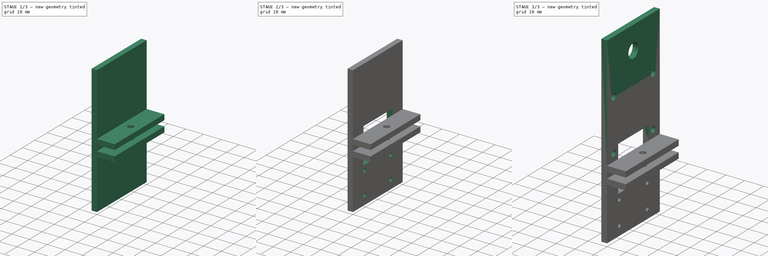
[diagram: build sequence overview — one tinted view per stage of 3, left to right]
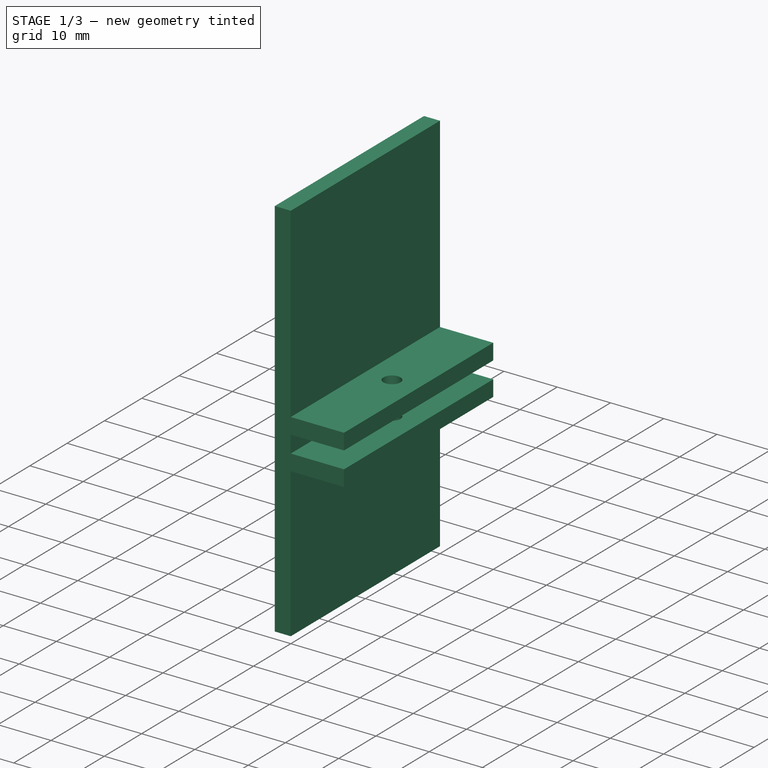
[diagram: stage 1 of 3 — iso view after this stage's code; geometry added in this stage tinted green]
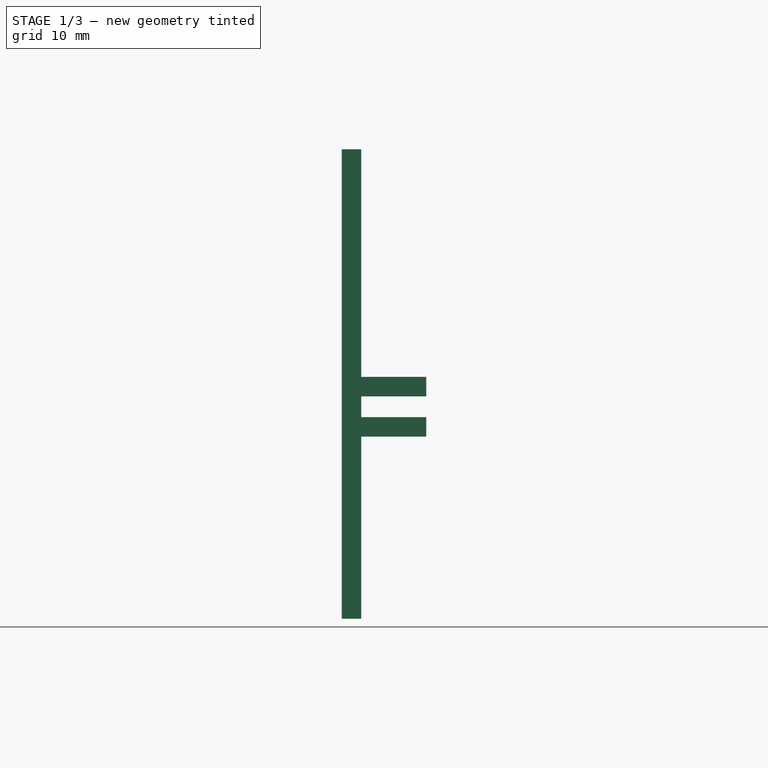
[diagram: stage 1 of 3 — front view after this stage's code; geometry added in this stage tinted green]
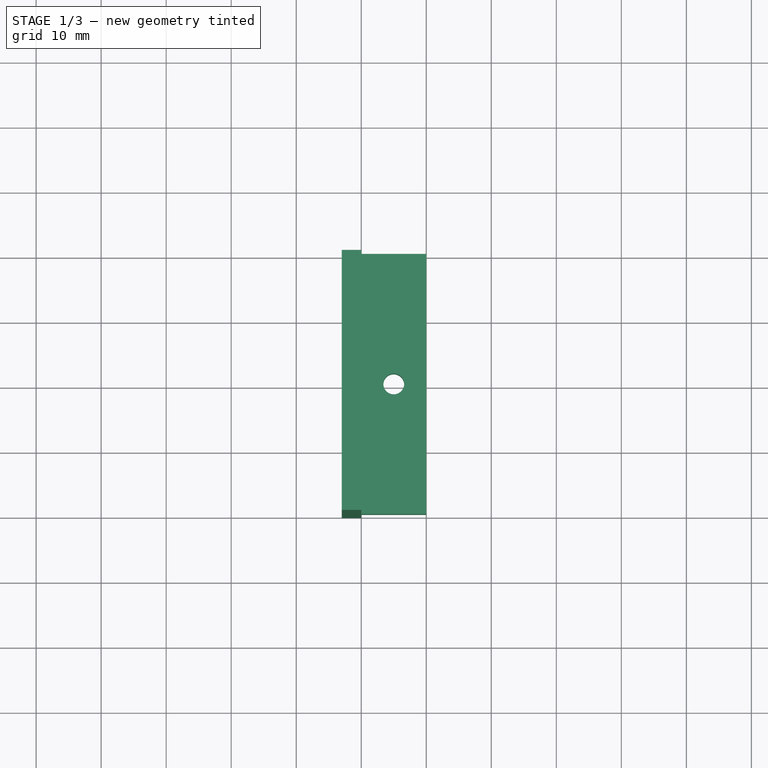
[diagram: stage 1 of 3 — top view after this stage's code; geometry added in this stage tinted green]
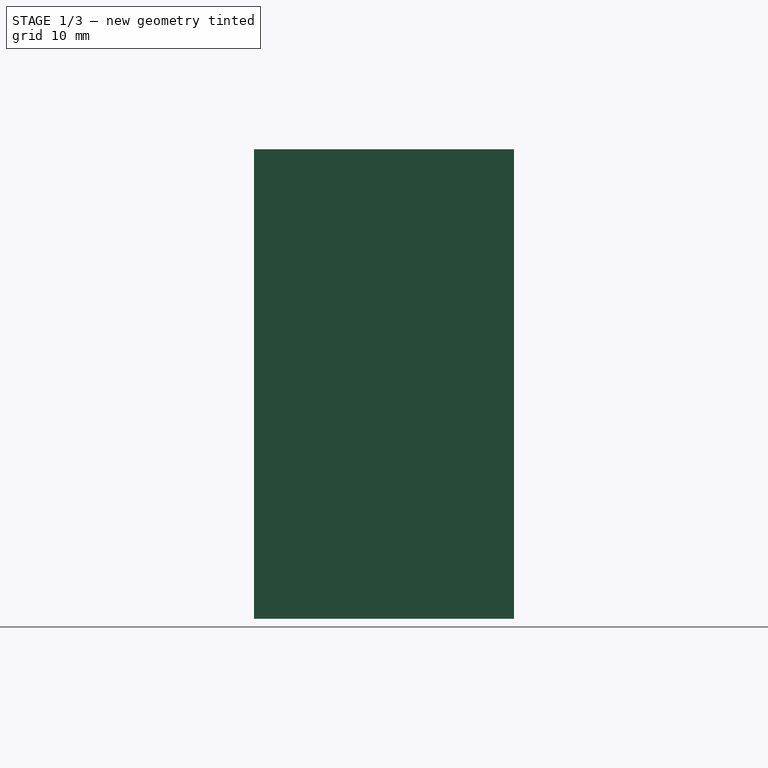
[diagram: stage 1 of 3 — right view after this stage's code; geometry added in this stage tinted green]
FCSTD DOCUMENT  (FreeCAD 0.18.1R)
Label: front_panel
License: All rights reserved
LicenseURL: http://en.wikipedia.org/wiki/All_rights_reserved
objects: Sketcher::SketchObject×5, PartDesign::Pocket×3, PartDesign::Pad×2, PartDesign::Body×1
note: 16 computed .brp shape members not serialized (recipe doc carries the construction recipe); baked Part::Feature solids carry a one-line shape summary decoded from their .brp

FEATURE [Sketcher::SketchObject] Sketch
  MapMode = 5
  Placement = pos=(0,0,0) rot=(1,0,0;1.5708rad)
  Support = -> [XZ_Plane]
  sketch-geometry (14):
    g0: LineSegment StartX=-3 StartY=39.6 StartZ=0 EndX=0 EndY=39.6 EndZ=0
    g1: LineSegment StartX=0 StartY=39.6 StartZ=0 EndX=0 EndY=4.6 EndZ=0
    g2: LineSegment StartX=0 StartY=4.6 StartZ=0 EndX=10 EndY=4.6 EndZ=0
    g3: LineSegment StartX=10 StartY=4.6 StartZ=0 EndX=10 EndY=1.6 EndZ=0
    g4: LineSegment StartX=10 StartY=1.6 StartZ=0 EndX=0 EndY=1.6 EndZ=0
    g5: LineSegment StartX=0 StartY=1.6 StartZ=0 EndX=0 EndY=0 EndZ=0
    g6: LineSegment StartX=0 StartY=0 StartZ=0 EndX=2e-16 EndY=-1.6 EndZ=0
    g7: LineSegment StartX=2e-16 StartY=-1.6 StartZ=0 EndX=10 EndY=-1.6 EndZ=0
    g8: LineSegment StartX=10 StartY=-1.6 StartZ=0 EndX=10 EndY=-4.6 EndZ=0
    g9: LineSegment StartX=10 StartY=-4.6 StartZ=0 EndX=0 EndY=-4.6 EndZ=0
    g10: LineSegment StartX=0 StartY=-4.6 StartZ=0 EndX=0 EndY=-32.6 EndZ=0
    g11: LineSegment StartX=0 StartY=-32.6 StartZ=0 EndX=-3 EndY=-32.6 EndZ=0
    g12: LineSegment StartX=-3 StartY=-32.6 StartZ=0 EndX=-3 EndY=39.6 EndZ=0
    g13: GeomPoint X=-3 Y=0 Z=0
  constraints (40):
    c: Horizontal(g0)
    c: Coincident(g0,g1)
    c: Vertical(g1)
    c: Coincident(g1,g2)
    c: Horizontal(g2)
    c: Coincident(g2,g3)
    c: Vertical(g3)
    c: Coincident(g3,g4)
    c: Horizontal(g4)
    c: Coincident(g4,g5)
    c: Coincident(g5,g-1)
    c: Coincident(g5,g6)
    c: Coincident(g6,g7)
    c: Horizontal(g7)
    c: Coincident(g7,g8)
    c: Vertical(g8)
    c: Coincident(g8,g9)
    c: PointOnObject(g9,g-2)
    c: Horizontal(g9)
    c: Coincident(g9,g10)
    c: Vertical(g10)
    c: Coincident(g10,g11)
    c: Coincident(g11,g12)
    c: Coincident(g12,g0)
    c: Vertical(g12)
    c: Vertical(g5)
    c: Equal(g6,g5)
    c: Horizontal(g11)
    c: Equal(g3,g8)
    c: DistanceY(g6,g4) = 3.2
    c: DistanceY(g3,g3) = 3
    c: Equal(g2,g4)
    c: Equal(g4,g7)
    c: Equal(g7,g9)
    c: DistanceX(g2,g2) = 10
    c: PointOnObject(g13,g12)
    c: PointOnObject(g13,g-1)
    c: DistanceX(g0,g0) = 3
    c: DistanceY(g10,g10) = 28
    c: DistanceY(g1,g1) = 35
FEATURE [PartDesign::Pad] Pad  label="Main shape"
  Length = 40
  Length2 = 100
  Midplane = true
  Placement = pos=(0,0,0) rot=(1,0,0;1.5708rad)
  Profile = -> Sketch
  Refine = true
  Type = 0
FEATURE [Sketcher::SketchObject] Sketch001
  MapMode = 5
  Placement = pos=(0,3.1e-15,4.6) rot=(0,0,1;3.14159rad)
  Support = -> [Pad]
  sketch-geometry (1):
    g0: Circle CenterX=-5 CenterY=0 CenterZ=0 NormalX=0 NormalY=0 NormalZ=1 AngleXU=0 Radius=1.6
  constraints (3):
    c: PointOnObject(g0,g-1)
    c: DistanceX(g0,g-1) = 5
    c: Diameter(g0) = 3.2
FEATURE [PartDesign::Pocket] Pocket  label="mount hole"
  BaseFeature = -> Pad
  Length = 5
  Length2 = 100
  Placement = pos=(0,0,0) rot=(1,0,0;1.5708rad)
  Profile = -> Sketch001
  Refine = true
  Type = 1
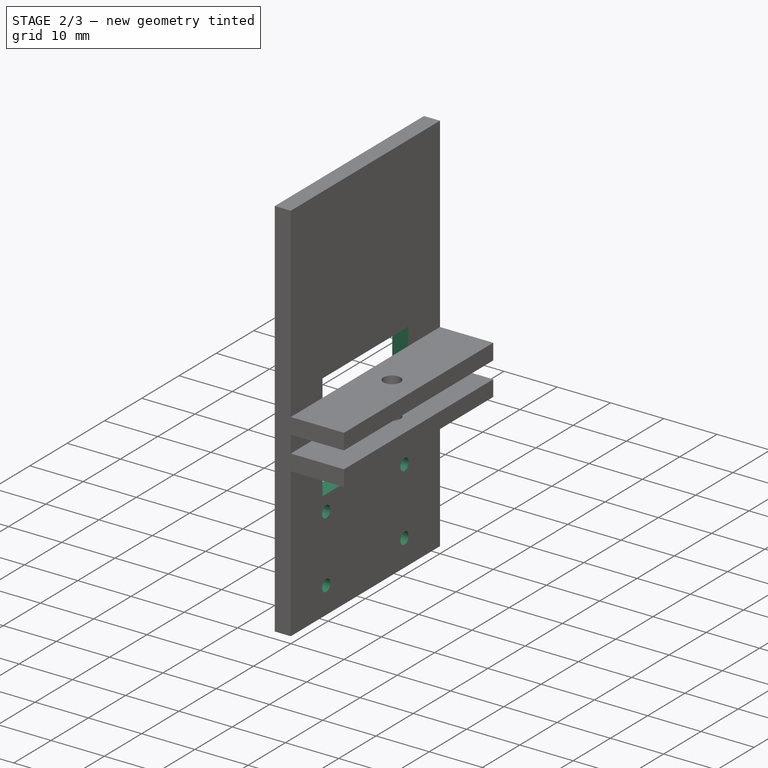
[diagram: stage 2 of 3 — iso view after this stage's code; geometry added in this stage tinted green]
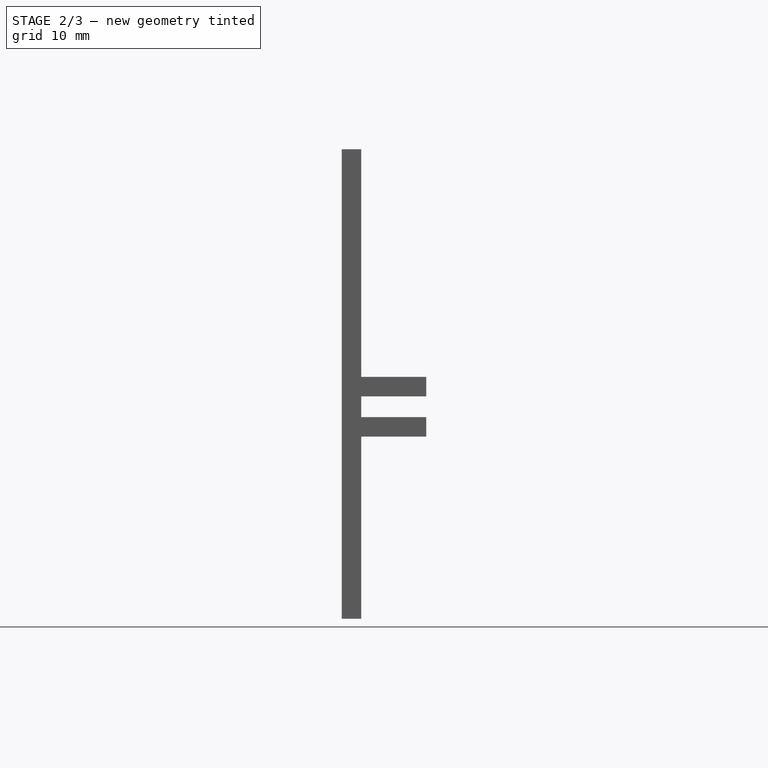
[diagram: stage 2 of 3 — front view after this stage's code; geometry added in this stage tinted green]
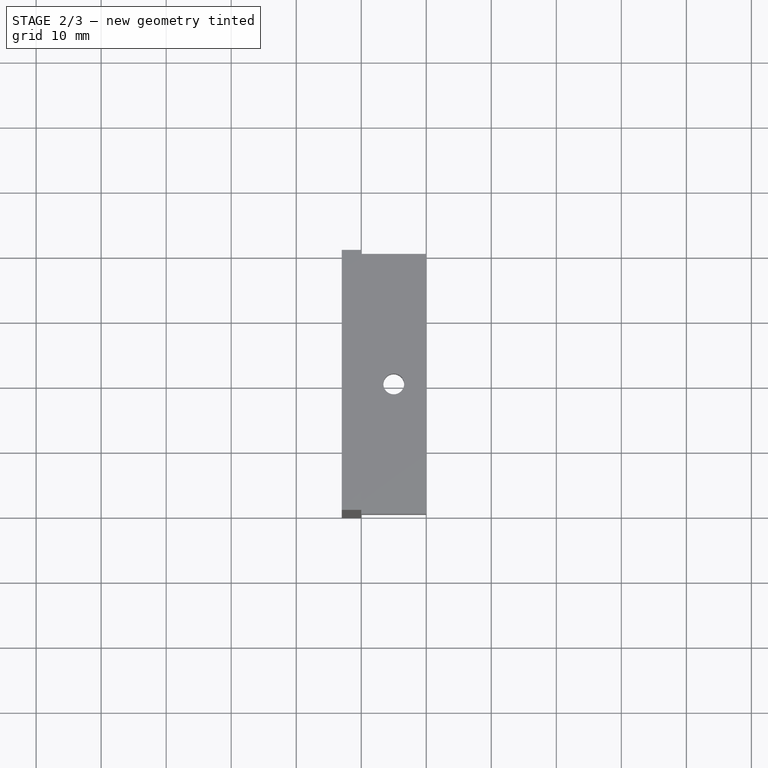
[diagram: stage 2 of 3 — top view after this stage's code; geometry added in this stage tinted green]
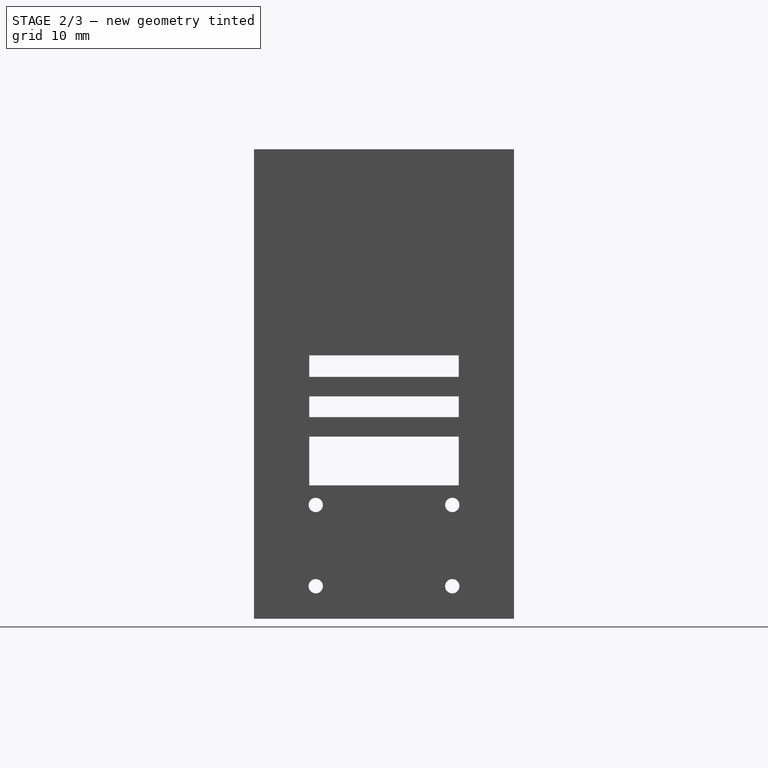
[diagram: stage 2 of 3 — right view after this stage's code; geometry added in this stage tinted green]
FEATURE [Sketcher::SketchObject] Sketch002
  ExternalGeometry = -> [Pocket]
  MapMode = 5
  Placement = pos=(0,0,0) rot=(0.707107,0,0.707107;3.14159rad)
  Support = -> [Pocket]
  sketch-geometry (12):
    g0: LineSegment [constr] StartX=-27.6 StartY=10.5 StartZ=0 EndX=-15.1 EndY=10.5 EndZ=0
    g1: LineSegment [constr] StartX=-15.1 StartY=10.5 StartZ=0 EndX=-15.1 EndY=-10.5 EndZ=0
    g2: LineSegment [constr] StartX=-15.1 StartY=-10.5 StartZ=0 EndX=-27.6 EndY=-10.5 EndZ=0
    g3: LineSegment [constr] StartX=-27.6 StartY=-10.5 StartZ=0 EndX=-27.6 EndY=10.5 EndZ=0
    g4: Circle CenterX=-27.6 CenterY=10.5 CenterZ=0 NormalX=0 NormalY=0 NormalZ=1 AngleXU=0 Radius=1.1
    g5: Circle CenterX=-15.1 CenterY=10.5 CenterZ=0 NormalX=0 NormalY=0 NormalZ=1 AngleXU=0 Radius=1.1
    g6: Circle CenterX=-27.6 CenterY=-10.5 CenterZ=0 NormalX=0 NormalY=0 NormalZ=1 AngleXU=0 Radius=1.1
    g7: Circle CenterX=-15.1 CenterY=-10.5 CenterZ=0 NormalX=0 NormalY=0 NormalZ=1 AngleXU=0 Radius=1.1
    g8: LineSegment StartX=-12.1 StartY=11.5 StartZ=0 EndX=7.9 EndY=11.5 EndZ=0
    g9: LineSegment StartX=7.9 StartY=11.5 StartZ=0 EndX=7.9 EndY=-11.5 EndZ=0
    g10: LineSegment StartX=7.9 StartY=-11.5 StartZ=0 EndX=-12.1 EndY=-11.5 EndZ=0
    g11: LineSegment StartX=-12.1 StartY=-11.5 StartZ=0 EndX=-12.1 EndY=11.5 EndZ=0
  constraints (30):
    c: Coincident(g0,g1)
    c: Coincident(g1,g2)
    c: Coincident(g2,g3)
    c: Coincident(g3,g0)
    c: Horizontal(g0)
    c: Horizontal(g2)
    c: Vertical(g3)
    c: DistanceX(g0,g0) = 12.5
    c: DistanceY(g3,g3) = 21
    c: Symmetric(g0,g1,g-1)
    c: DistanceX(g-3,g0) = 5
    c: Coincident(g4,g0)
    c: Coincident(g6,g2)
    c: Coincident(g7,g1)
    c: Equal(g4,g5)
    c: Equal(g5,g7)
    c: Equal(g7,g6)
    c: Diameter(g5) = 2.2
    c: Coincident(g5,g0)
    c: Coincident(g8,g9)
    c: Coincident(g9,g10)
    c: Coincident(g10,g11)
    c: Coincident(g11,g8)
    c: Horizontal(g8)
    c: Horizontal(g10)
    c: Vertical(g11)
    c: Symmetric(g8,g9,g-1)
    c: DistanceY(g9,g9) = 23
    c: DistanceX(g8,g8) = 20
    c: DistanceX(g7,g10) = 3
FEATURE [PartDesign::Pocket] Pocket001  label="Camera mount"
  BaseFeature = -> Pocket
  Length = 5
  Length2 = 100
  Placement = pos=(0,0,0) rot=(1,0,0;1.5708rad)
  Profile = -> Sketch002
  Refine = true
  Type = 1
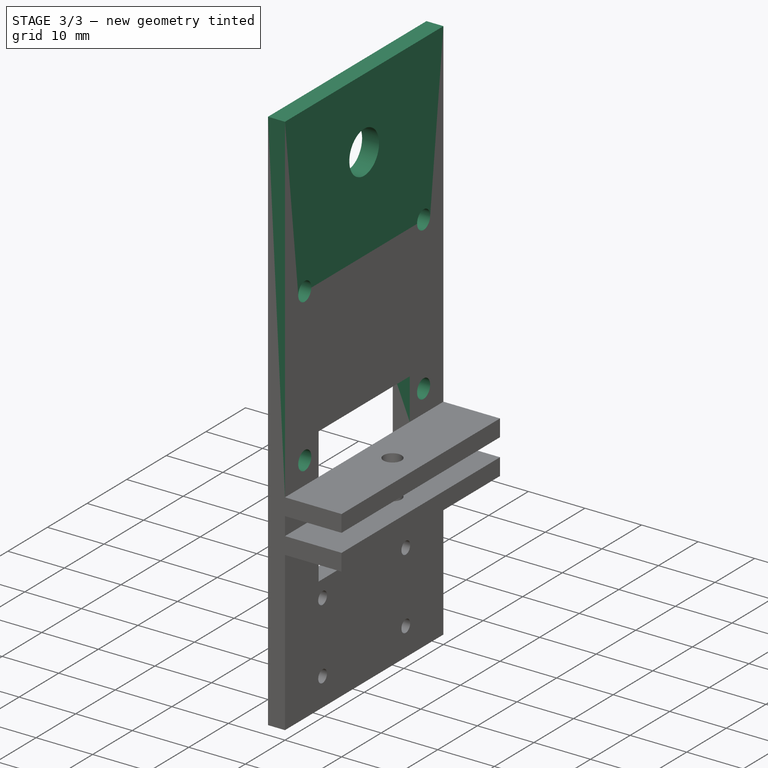
[diagram: stage 3 of 3 — iso view after this stage's code; geometry added in this stage tinted green]
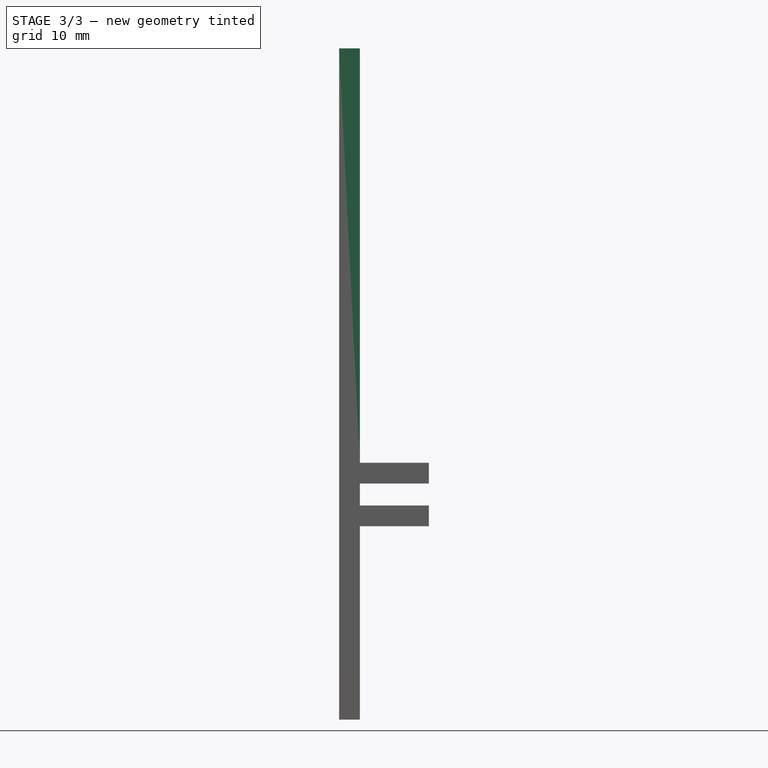
[diagram: stage 3 of 3 — front view after this stage's code; geometry added in this stage tinted green]
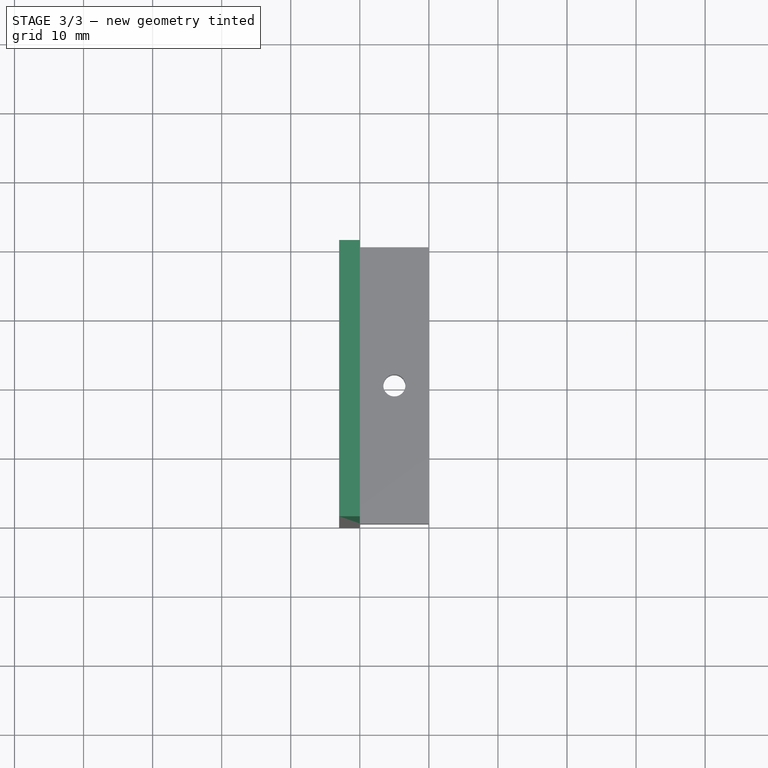
[diagram: stage 3 of 3 — top view after this stage's code; geometry added in this stage tinted green]
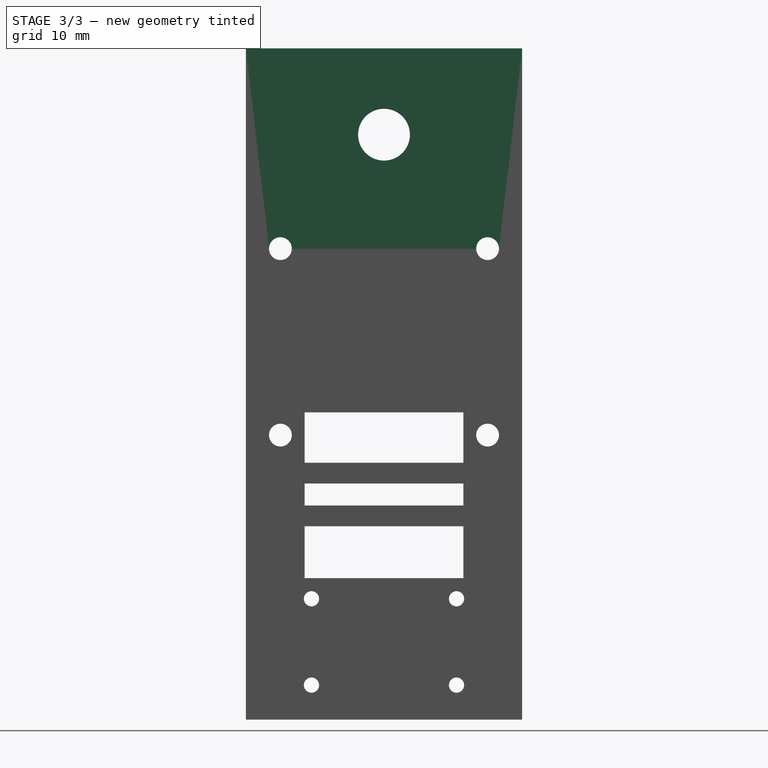
[diagram: stage 3 of 3 — right view after this stage's code; geometry added in this stage tinted green]
FEATURE [Sketcher::SketchObject] Sketch003
  ExternalGeometry = -> [Pocket001]
  MapMode = 5
  Placement = pos=(0,0,0) rot=(0.707107,0,0.707107;3.14159rad)
  Support = -> [Pocket001]
  sketch-geometry (14):
    g0: LineSegment [constr] StartX=8.6 StartY=15 StartZ=0 EndX=35.6 EndY=15 EndZ=0
    g1: LineSegment [constr] StartX=35.6 StartY=15 StartZ=0 EndX=35.6 EndY=-15 EndZ=0
    g2: LineSegment [constr] StartX=35.6 StartY=-15 StartZ=0 EndX=8.6 EndY=-15 EndZ=0
    g3: LineSegment [constr] StartX=8.6 StartY=-15 StartZ=0 EndX=8.6 EndY=15 EndZ=0
    g4: LineSegment [constr] StartX=8.6 StartY=-15 StartZ=0 EndX=4.6 EndY=-20 EndZ=0
    g5: LineSegment [constr] StartX=35.6 StartY=15 StartZ=0 EndX=39.6 EndY=20 EndZ=0
    g6: Circle CenterX=8.6 CenterY=15 CenterZ=0 NormalX=0 NormalY=0 NormalZ=1 AngleXU=0 Radius=1.65
    g7: Circle CenterX=35.6 CenterY=15 CenterZ=0 NormalX=0 NormalY=0 NormalZ=1 AngleXU=0 Radius=1.65
    g8: Circle CenterX=35.6 CenterY=-15 CenterZ=0 NormalX=0 NormalY=0 NormalZ=1 AngleXU=0 Radius=1.65
    g9: Circle CenterX=8.6 CenterY=-15 CenterZ=0 NormalX=0 NormalY=0 NormalZ=1 AngleXU=0 Radius=1.65
    g10: LineSegment StartX=7.9 StartY=11.5 StartZ=0 EndX=11.9 EndY=11.5 EndZ=0
    g11: LineSegment StartX=11.9 StartY=11.5 StartZ=0 EndX=11.9 EndY=-11.5 EndZ=0
    g12: LineSegment StartX=11.9 StartY=-11.5 StartZ=0 EndX=7.9 EndY=-11.5 EndZ=0
    g13: LineSegment StartX=7.9 StartY=-11.5 StartZ=0 EndX=7.9 EndY=11.5 EndZ=0
  constraints (33):
    c: Coincident(g0,g1)
    c: Coincident(g1,g2)
    c: Coincident(g2,g3)
    c: Coincident(g3,g0)
    c: Horizontal(g0)
    c: Horizontal(g2)
    c: Vertical(g1)
    c: Coincident(g4,g2)
    c: Coincident(g4,g-3)
    c: Coincident(g5,g0)
    c: Coincident(g5,g-4)
    c: Equal(g5,g4)
    c: DistanceY(g1,g1) = 30
    c: DistanceX(g2,g2) = 27
    c: Symmetric(g2,g0,g-1)
    c: Coincident(g6,g0)
    c: Coincident(g8,g1)
    c: Coincident(g9,g2)
    c: Equal(g6,g7)
    c: Equal(g7,g8)
    c: Equal(g8,g9)
    c: Diameter(g6) = 3.3
    c: Coincident(g10,g11)
    c: Coincident(g11,g12)
    c: Coincident(g12,g13)
    c: Coincident(g13,g10)
    c: Horizontal(g10)
    c: Horizontal(g12)
    c: Vertical(g13)
    c: DistanceX(g10,g10) = 4
    c: Symmetric(g10,g11,g-1)
    c: Coincident(g0,g7)
    c: Coincident(g12,g-5)
FEATURE [PartDesign::Pocket] Pocket002  label="Display mount"
  BaseFeature = -> Pocket001
  Length = 5
  Length2 = 100
  Placement = pos=(0,0,0) rot=(1,0,0;1.5708rad)
  Profile = -> Sketch003
  Refine = true
  Type = 1
FEATURE [Sketcher::SketchObject] Sketch004
  ExternalGeometry = -> [Pocket002]
  MapMode = 5
  Placement = pos=(0,0,0) rot=(0.707107,0,0.707107;3.14159rad)
  Support = -> [Pocket002]
  sketch-geometry (5):
    g0: LineSegment StartX=39.6 StartY=20 StartZ=0 EndX=64.6 EndY=20 EndZ=0
    g1: LineSegment StartX=64.6 StartY=20 StartZ=0 EndX=64.6 EndY=-20 EndZ=0
    g2: LineSegment StartX=64.6 StartY=-20 StartZ=0 EndX=39.6 EndY=-20 EndZ=0
    g3: LineSegment StartX=39.6 StartY=-20 StartZ=0 EndX=39.6 EndY=20 EndZ=0
    g4: Circle CenterX=52.1 CenterY=-7.48e-14 CenterZ=0 NormalX=0 NormalY=0 NormalZ=1 AngleXU=0 Radius=3.75
  constraints (12):
    c: Coincident(g0,g1)
    c: Coincident(g1,g2)
    c: Coincident(g2,g3)
    c: Coincident(g3,g0)
    c: Horizontal(g0)
    c: Horizontal(g2)
    c: Vertical(g1)
    c: Coincident(g0,g-3)
    c: Coincident(g2,g-3)
    c: DistanceX(g2,g2) = 25
    c: Symmetric(g0,g2,g4)
    c: Diameter(g4) = 7.5
FEATURE [PartDesign::Pad] Pad001  label="Button mount"
  BaseFeature = -> Pocket002
  Length = 3
  Length2 = 100
  Placement = pos=(0,0,0) rot=(1,0,0;1.5708rad)
  Profile = -> Sketch004
  Refine = true
  Reversed = true
  Type = 0
FEATURE [PartDesign::Body] Body
  Group = -> [Sketch,Pad,Sketch001,Pocket,Sketch002,Pocket001,Sketch003,Pocket002,Sketch004,Pad001]
  Origin = -> Origin
  Tip = -> Pad001
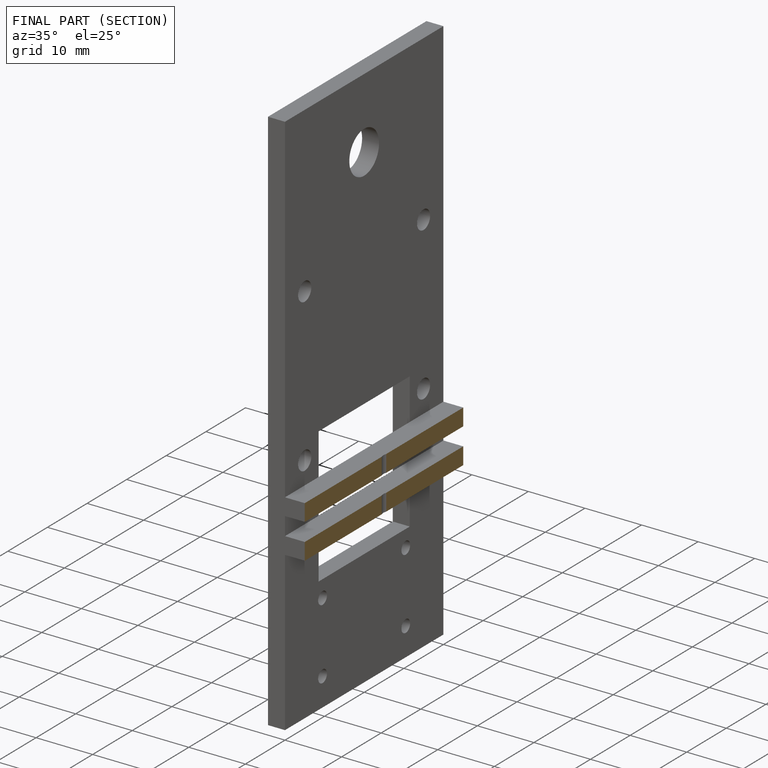
[diagram: finished part — half-section view (interior)]
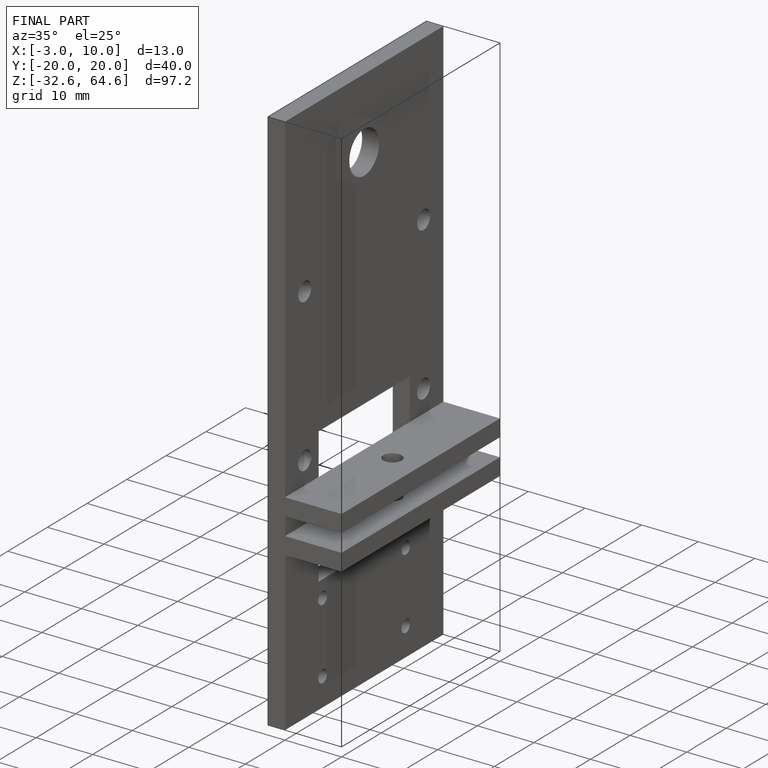
[diagram: finished part — iso view with bounding-box wireframe]
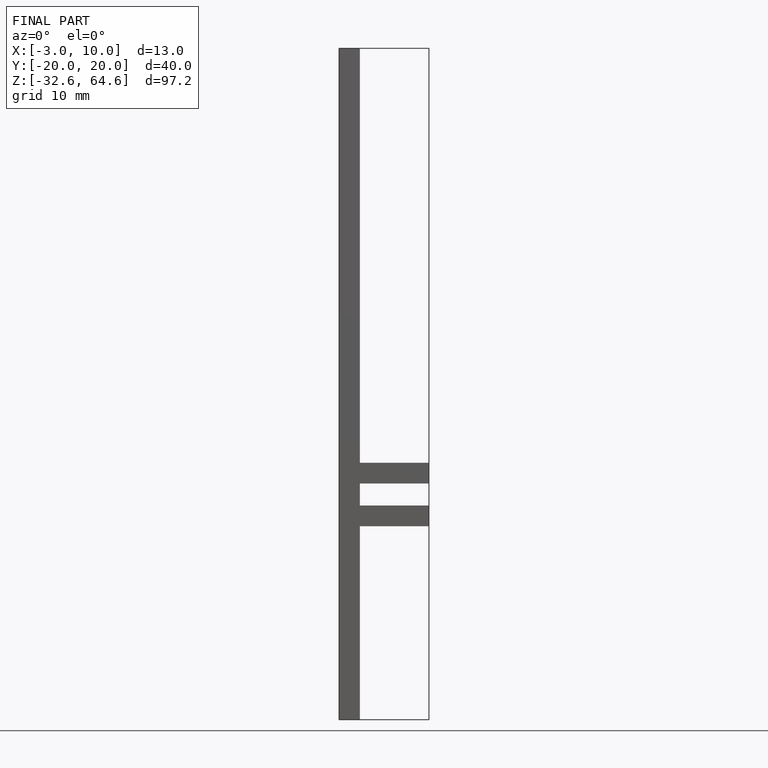
[diagram: finished part — front view with bounding-box wireframe]
